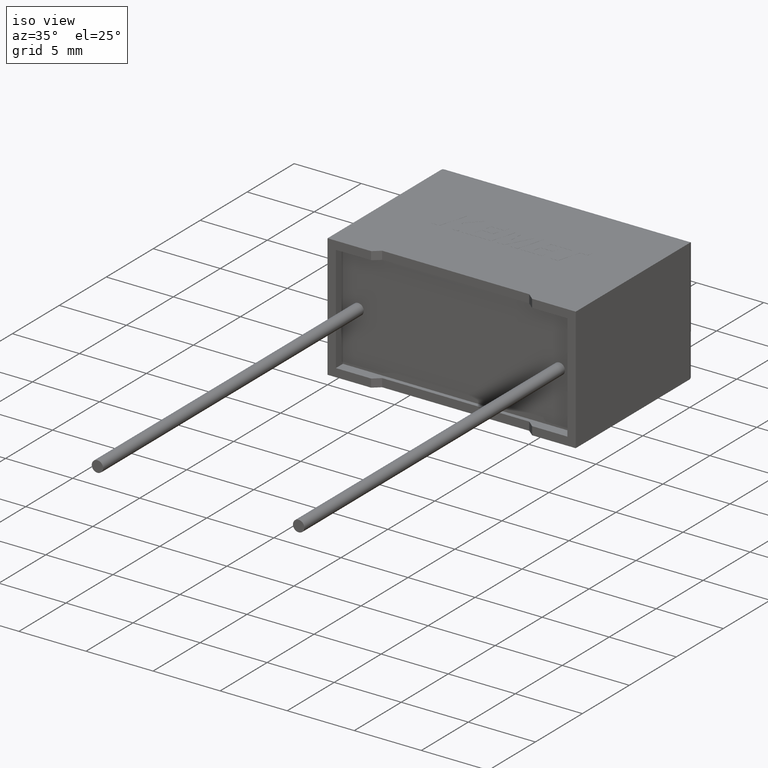
[diagram: clean part render]
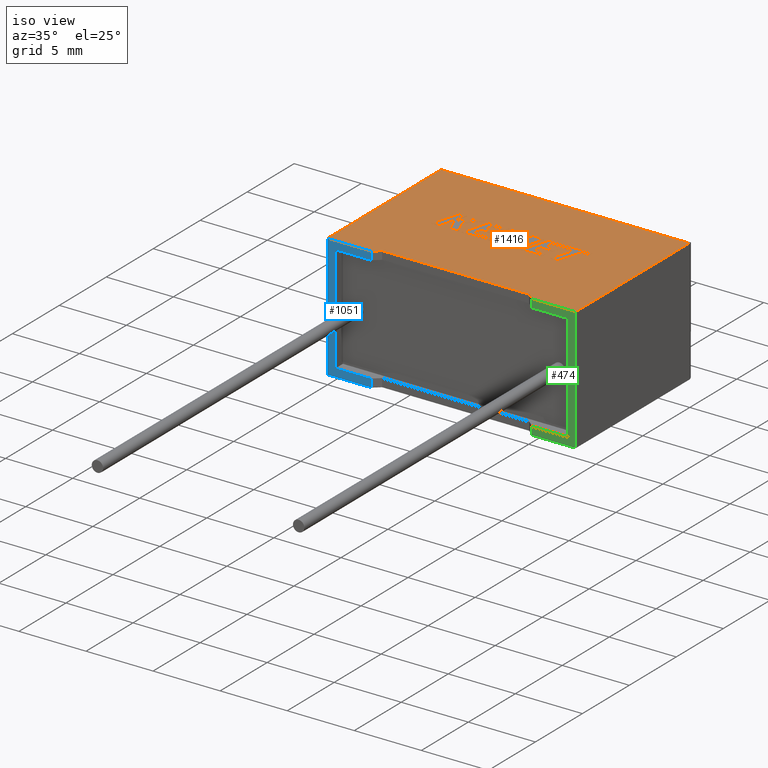
[diagram: same view with three faces highlighted in distinct colors, each labeled with its STEP entity id]
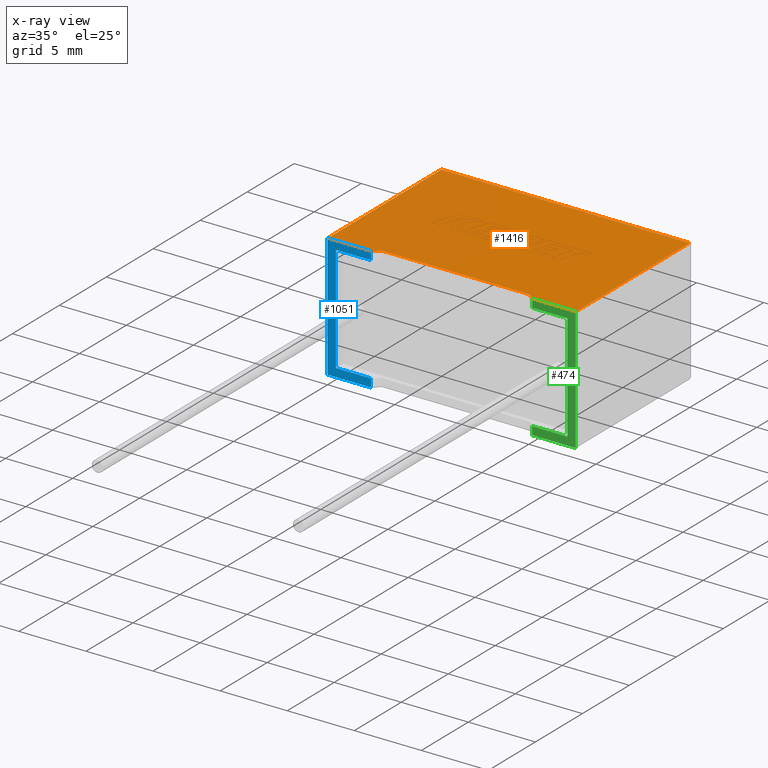
[diagram: x-ray of the same camera — body ghosted, the three highlighted faces saturated]
A machine part, iso view with three faces highlighted in distinct colors.
The next image is the same camera in x-ray (body ghosted, the three faces saturated) — at least one of them is partly hidden behind the body in this view.
Their STEP definitions:

[orange] entity #1416 — the highlighted planar face has unit normal (0, 0, -1).
#66 = ORIENTED_EDGE ( 'NONE', *, *, #1108, .F. ) ;
#142 = CARTESIAN_POINT ( 'NONE',  ( 9.250000000000000000, 0.4344480000000005000, 9.199999999999999300 ) ) ;
#148 = EDGE_CURVE ( 'NONE', #2150, #2474, #2390, .T. ) ;
#168 = CARTESIAN_POINT ( 'NONE',  ( 3.763745000000000100, 0.4344479999999998300, 9.199999999999999300 ) ) ;
#246 = VERTEX_POINT ( 'NONE', #1642 ) ;
#261 = VECTOR ( 'NONE', #2047, 1000.000000000000000 ) ;
#308 = VERTEX_POINT ( 'NONE', #1473 ) ;
#354 = CARTESIAN_POINT ( 'NONE',  ( 18.50000000000000000, 0.0000000000000000000, 9.199999999999999300 ) ) ;
#394 = VECTOR ( 'NONE', #2989, 1000.000000000000000 ) ;
#479 = VERTEX_POINT ( 'NONE', #354 ) ;
#484 = ORIENTED_EDGE ( 'NONE', *, *, #849, .T. ) ;
#501 = DIRECTION ( 'NONE',  ( -1.000000000000000000, 0.0000000000000000000, -0.0000000000000000000 ) ) ;
#557 = ORIENTED_EDGE ( 'NONE', *, *, #148, .T. ) ;
#595 = LINE ( 'NONE', #2581, #1975 ) ;
#610 = EDGE_CURVE ( 'NONE', #2150, #1459, #634, .T. ) ;
#630 = LINE ( 'NONE', #1663, #1761 ) ;
#631 = DIRECTION ( 'NONE',  ( -1.000000000000000000, 0.0000000000000000000, 0.0000000000000000000 ) ) ;
#634 = LINE ( 'NONE', #142, #261 ) ;
#658 = CARTESIAN_POINT ( 'NONE',  ( 15.25000000000000000, 1.990051048614449400E-016, 9.199999999999999300 ) ) ;
#728 = VERTEX_POINT ( 'NONE', #1651 ) ;
#849 = EDGE_CURVE ( 'NONE', #2554, #728, #630, .T. ) ;
#860 = CARTESIAN_POINT ( 'NONE',  ( 14.73625499999999800, 0.4344479999999998300, 9.199999999999999300 ) ) ;
#940 = CARTESIAN_POINT ( 'NONE',  ( 18.50000000000000000, 0.0000000000000000000, 9.199999999999999300 ) ) ;
#1027 = DIRECTION ( 'NONE',  ( 1.000000000000000000, 0.0000000000000000000, 0.0000000000000000000 ) ) ;
#1062 = ORIENTED_EDGE ( 'NONE', *, *, #2013, .T. ) ;
#1108 = EDGE_CURVE ( 'NONE', #1459, #728, #595, .T. ) ;
#1263 = ORIENTED_EDGE ( 'NONE', *, *, #610, .F. ) ;
#1307 = CARTESIAN_POINT ( 'NONE',  ( 0.0000000000000000000, 0.0000000000000000000, 9.199999999999999300 ) ) ;
#1326 = CARTESIAN_POINT ( 'NONE',  ( 0.0000000000000000000, 0.0000000000000000000, 9.199999999999999300 ) ) ;
#1415 = CARTESIAN_POINT ( 'NONE',  ( 0.0000000000000000000, 12.10000000000000000, 9.199999999999999300 ) ) ;
#1416 = ADVANCED_FACE ( 'NONE', ( #2072 ), #3049, .F. ) ;
#1420 = DIRECTION ( 'NONE',  ( -0.7635762981264977400, -0.6457176139299856100, -0.0000000000000000000 ) ) ;
#1442 = LINE ( 'NONE', #1415, #1813 ) ;
#1459 = VERTEX_POINT ( 'NONE', #168 ) ;
#1473 = CARTESIAN_POINT ( 'NONE',  ( 0.0000000000000000000, 12.10000000000000000, 9.199999999999999300 ) ) ;
#1534 = LINE ( 'NONE', #940, #2631 ) ;
#1597 = LINE ( 'NONE', #1326, #394 ) ;
#1634 = EDGE_CURVE ( 'NONE', #479, #246, #1534, .T. ) ;
#1642 = CARTESIAN_POINT ( 'NONE',  ( 18.50000000000000000, 12.10000000000000000, 9.199999999999999300 ) ) ;
#1651 = CARTESIAN_POINT ( 'NONE',  ( 3.250000000000000400, 1.990051048614449400E-016, 9.199999999999999300 ) ) ;
#1663 = CARTESIAN_POINT ( 'NONE',  ( 0.0000000000000000000, 0.0000000000000000000, 9.199999999999999300 ) ) ;
#1671 = LINE ( 'NONE', #1957, #2846 ) ;
#1678 = DIRECTION ( 'NONE',  ( 0.7635762981264977400, -0.6457176139299856100, -0.0000000000000000000 ) ) ;
#1761 = VECTOR ( 'NONE', #2141, 1000.000000000000000 ) ;
#1813 = VECTOR ( 'NONE', #631, 1000.000000000000000 ) ;
#1900 = DIRECTION ( 'NONE',  ( 0.0000000000000000000, 1.000000000000000000, 0.0000000000000000000 ) ) ;
#1957 = CARTESIAN_POINT ( 'NONE',  ( 0.0000000000000000000, 0.0000000000000000000, 9.199999999999999300 ) ) ;
#1970 = EDGE_CURVE ( 'NONE', #308, #2554, #1597, .T. ) ;
#1975 = VECTOR ( 'NONE', #1420, 1000.000000000000100 ) ;
#2013 = EDGE_CURVE ( 'NONE', #2474, #479, #1671, .T. ) ;
#2014 = VECTOR ( 'NONE', #1678, 1000.000000000000100 ) ;
#2047 = DIRECTION ( 'NONE',  ( -1.000000000000000000, -1.185729251540992600E-016, 0.0000000000000000000 ) ) ;
#2072 = FACE_OUTER_BOUND ( 'NONE', #2090, .T. ) ;
#2090 = EDGE_LOOP ( 'NONE', ( #3046, #2412, #2654, #484, #66, #1263, #557, #1062 ) ) ;
#2107 = CARTESIAN_POINT ( 'NONE',  ( 15.25000000000000000, 1.990051048614449400E-016, 9.199999999999999300 ) ) ;
#2141 = DIRECTION ( 'NONE',  ( 1.000000000000000000, 0.0000000000000000000, 0.0000000000000000000 ) ) ;
#2150 = VERTEX_POINT ( 'NONE', #860 ) ;
#2194 = DIRECTION ( 'NONE',  ( 0.0000000000000000000, 0.0000000000000000000, -1.000000000000000000 ) ) ;
#2257 = AXIS2_PLACEMENT_3D ( 'NONE', #2830, #2194, #501 ) ;
#2390 = LINE ( 'NONE', #658, #2014 ) ;
#2412 = ORIENTED_EDGE ( 'NONE', *, *, #2819, .T. ) ;
#2474 = VERTEX_POINT ( 'NONE', #2107 ) ;
#2554 = VERTEX_POINT ( 'NONE', #1307 ) ;
#2581 = CARTESIAN_POINT ( 'NONE',  ( 3.250000000000000400, 1.990051048614449400E-016, 9.199999999999999300 ) ) ;
#2631 = VECTOR ( 'NONE', #1900, 1000.000000000000000 ) ;
#2654 = ORIENTED_EDGE ( 'NONE', *, *, #1970, .T. ) ;
#2819 = EDGE_CURVE ( 'NONE', #246, #308, #1442, .T. ) ;
#2830 = CARTESIAN_POINT ( 'NONE',  ( 0.0000000000000000000, 0.0000000000000000000, 9.199999999999999300 ) ) ;
#2846 = VECTOR ( 'NONE', #1027, 1000.000000000000000 ) ;
#2989 = DIRECTION ( 'NONE',  ( -0.0000000000000000000, -1.000000000000000000, -0.0000000000000000000 ) ) ;
#3046 = ORIENTED_EDGE ( 'NONE', *, *, #1634, .T. ) ;
#3049 = PLANE ( 'NONE',  #2257 ) ;

[blue] entity #1051 — the highlighted planar face has unit normal (0, 1, 0).
#63 = EDGE_CURVE ( 'NONE', #1707, #2708, #598, .T. ) ;
#121 = VECTOR ( 'NONE', #1183, 1000.000000000000000 ) ;
#185 = VERTEX_POINT ( 'NONE', #2444 ) ;
#302 = VERTEX_POINT ( 'NONE', #1243 ) ;
#319 = EDGE_CURVE ( 'NONE', #2554, #1871, #2308, .T. ) ;
#450 = CARTESIAN_POINT ( 'NONE',  ( 0.0000000000000000000, 0.0000000000000000000, 0.0000000000000000000 ) ) ;
#519 = EDGE_LOOP ( 'NONE', ( #1787, #2302, #2935, #1991, #3050, #2510, #1876, #695 ) ) ;
#546 = EDGE_CURVE ( 'NONE', #185, #1707, #1585, .T. ) ;
#577 = LINE ( 'NONE', #705, #1556 ) ;
#598 = LINE ( 'NONE', #2438, #1199 ) ;
#630 = LINE ( 'NONE', #1663, #1761 ) ;
#632 = VECTOR ( 'NONE', #1492, 1000.000000000000000 ) ;
#665 = CARTESIAN_POINT ( 'NONE',  ( 3.250000000000000400, 1.990051048614449400E-016, 0.0000000000000000000 ) ) ;
#675 = DIRECTION ( 'NONE',  ( 0.0000000000000000000, -0.0000000000000000000, 1.000000000000000000 ) ) ;
#695 = ORIENTED_EDGE ( 'NONE', *, *, #319, .T. ) ;
#705 = CARTESIAN_POINT ( 'NONE',  ( 3.250000000000000400, 1.990051048614449400E-016, 0.0000000000000000000 ) ) ;
#728 = VERTEX_POINT ( 'NONE', #1651 ) ;
#846 = FACE_OUTER_BOUND ( 'NONE', #519, .T. ) ;
#849 = EDGE_CURVE ( 'NONE', #2554, #728, #630, .T. ) ;
#875 = VECTOR ( 'NONE', #2515, 1000.000000000000000 ) ;
#900 = VECTOR ( 'NONE', #920, 1000.000000000000000 ) ;
#920 = DIRECTION ( 'NONE',  ( 1.000000000000000000, 0.0000000000000000000, -1.255832623252359000E-017 ) ) ;
#1010 = CARTESIAN_POINT ( 'NONE',  ( 0.0000000000000000000, 0.0000000000000000000, 9.199999999999999300 ) ) ;
#1017 = EDGE_CURVE ( 'NONE', #302, #1618, #1464, .T. ) ;
#1051 = ADVANCED_FACE ( 'NONE', ( #846 ), #1635, .F. ) ;
#1183 = DIRECTION ( 'NONE',  ( 1.000000000000000000, 0.0000000000000000000, 0.0000000000000000000 ) ) ;
#1199 = VECTOR ( 'NONE', #2622, 1000.000000000000000 ) ;
#1240 = CARTESIAN_POINT ( 'NONE',  ( 0.6166666050000000300, 0.0000000000000000000, 0.6166666049999998100 ) ) ;
#1243 = CARTESIAN_POINT ( 'NONE',  ( 3.250000000000000400, 1.990051048614449400E-016, 0.0000000000000000000 ) ) ;
#1307 = CARTESIAN_POINT ( 'NONE',  ( 0.0000000000000000000, 0.0000000000000000000, 9.199999999999999300 ) ) ;
#1378 = CARTESIAN_POINT ( 'NONE',  ( 3.250000000000000400, 1.990051048614449400E-016, 0.6166666049999998100 ) ) ;
#1464 = LINE ( 'NONE', #665, #1863 ) ;
#1492 = DIRECTION ( 'NONE',  ( -0.0000000000000000000, -0.0000000000000000000, -1.000000000000000000 ) ) ;
#1520 = LINE ( 'NONE', #1623, #121 ) ;
#1556 = VECTOR ( 'NONE', #1594, 1000.000000000000000 ) ;
#1585 = LINE ( 'NONE', #2031, #875 ) ;
#1594 = DIRECTION ( 'NONE',  ( -0.0000000000000000000, -0.0000000000000000000, 1.000000000000000000 ) ) ;
#1618 = VERTEX_POINT ( 'NONE', #1378 ) ;
#1623 = CARTESIAN_POINT ( 'NONE',  ( 0.0000000000000000000, 0.0000000000000000000, 0.0000000000000000000 ) ) ;
#1635 = PLANE ( 'NONE',  #2220 ) ;
#1651 = CARTESIAN_POINT ( 'NONE',  ( 3.250000000000000400, 1.990051048614449400E-016, 9.199999999999999300 ) ) ;
#1663 = CARTESIAN_POINT ( 'NONE',  ( 0.0000000000000000000, 0.0000000000000000000, 9.199999999999999300 ) ) ;
#1707 = VERTEX_POINT ( 'NONE', #2609 ) ;
#1761 = VECTOR ( 'NONE', #2141, 1000.000000000000000 ) ;
#1787 = ORIENTED_EDGE ( 'NONE', *, *, #2768, .T. ) ;
#1863 = VECTOR ( 'NONE', #2334, 1000.000000000000000 ) ;
#1871 = VERTEX_POINT ( 'NONE', #450 ) ;
#1876 = ORIENTED_EDGE ( 'NONE', *, *, #849, .F. ) ;
#1991 = ORIENTED_EDGE ( 'NONE', *, *, #63, .F. ) ;
#2031 = CARTESIAN_POINT ( 'NONE',  ( 17.88333339499999800, 0.0000000000000000000, 8.583333395000000400 ) ) ;
#2141 = DIRECTION ( 'NONE',  ( 1.000000000000000000, 0.0000000000000000000, 0.0000000000000000000 ) ) ;
#2220 = AXIS2_PLACEMENT_3D ( 'NONE', #2363, #2349, #675 ) ;
#2302 = ORIENTED_EDGE ( 'NONE', *, *, #1017, .T. ) ;
#2308 = LINE ( 'NONE', #1010, #632 ) ;
#2334 = DIRECTION ( 'NONE',  ( -0.0000000000000000000, -0.0000000000000000000, 1.000000000000000000 ) ) ;
#2349 = DIRECTION ( 'NONE',  ( 0.0000000000000000000, 1.000000000000000000, 0.0000000000000000000 ) ) ;
#2363 = CARTESIAN_POINT ( 'NONE',  ( 0.0000000000000000000, 0.0000000000000000000, 9.199999999999999300 ) ) ;
#2438 = CARTESIAN_POINT ( 'NONE',  ( 0.6166666050000000300, 0.0000000000000000000, 8.583333394999998600 ) ) ;
#2444 = CARTESIAN_POINT ( 'NONE',  ( 3.250000000000000400, 1.990051048614449400E-016, 8.583333395000000400 ) ) ;
#2510 = ORIENTED_EDGE ( 'NONE', *, *, #2517, .T. ) ;
#2515 = DIRECTION ( 'NONE',  ( -1.000000000000000000, 0.0000000000000000000, -1.004666098601887200E-016 ) ) ;
#2517 = EDGE_CURVE ( 'NONE', #185, #728, #577, .T. ) ;
#2554 = VERTEX_POINT ( 'NONE', #1307 ) ;
#2561 = EDGE_CURVE ( 'NONE', #2708, #1618, #2655, .T. ) ;
#2609 = CARTESIAN_POINT ( 'NONE',  ( 0.6166666050000000300, 0.0000000000000000000, 8.583333394999998600 ) ) ;
#2622 = DIRECTION ( 'NONE',  ( 0.0000000000000000000, 0.0000000000000000000, -1.000000000000000000 ) ) ;
#2655 = LINE ( 'NONE', #2777, #900 ) ;
#2708 = VERTEX_POINT ( 'NONE', #1240 ) ;
#2768 = EDGE_CURVE ( 'NONE', #1871, #302, #1520, .T. ) ;
#2777 = CARTESIAN_POINT ( 'NONE',  ( 0.6166666050000000300, 0.0000000000000000000, 0.6166666049999998100 ) ) ;
#2935 = ORIENTED_EDGE ( 'NONE', *, *, #2561, .F. ) ;
#3050 = ORIENTED_EDGE ( 'NONE', *, *, #546, .F. ) ;

[green] entity #474 — the highlighted planar face has unit normal (0, 1, 0).
#1 = ORIENTED_EDGE ( 'NONE', *, *, #973, .F. ) ;
#94 = ORIENTED_EDGE ( 'NONE', *, *, #2246, .F. ) ;
#141 = LINE ( 'NONE', #441, #2710 ) ;
#162 = CARTESIAN_POINT ( 'NONE',  ( 17.88333339499999800, 0.0000000000000000000, 8.583333395000000400 ) ) ;
#197 = CARTESIAN_POINT ( 'NONE',  ( 17.88333339499999800, 0.0000000000000000000, 0.6166666049999995900 ) ) ;
#259 = VECTOR ( 'NONE', #772, 1000.000000000000000 ) ;
#330 = DIRECTION ( 'NONE',  ( 0.0000000000000000000, -0.0000000000000000000, 1.000000000000000000 ) ) ;
#354 = CARTESIAN_POINT ( 'NONE',  ( 18.50000000000000000, 0.0000000000000000000, 9.199999999999999300 ) ) ;
#390 = DIRECTION ( 'NONE',  ( -1.000000000000000000, 0.0000000000000000000, -1.004666098601887200E-016 ) ) ;
#416 = EDGE_CURVE ( 'NONE', #479, #1655, #1198, .T. ) ;
#441 = CARTESIAN_POINT ( 'NONE',  ( 15.25000000000000000, 1.990051048614449400E-016, 0.0000000000000000000 ) ) ;
#474 = ADVANCED_FACE ( 'NONE', ( #1869 ), #2479, .F. ) ;
#479 = VERTEX_POINT ( 'NONE', #354 ) ;
#525 = VECTOR ( 'NONE', #390, 1000.000000000000000 ) ;
#629 = EDGE_CURVE ( 'NONE', #1666, #1655, #2641, .T. ) ;
#698 = CARTESIAN_POINT ( 'NONE',  ( 18.50000000000000000, 0.0000000000000000000, 0.0000000000000000000 ) ) ;
#767 = LINE ( 'NONE', #1260, #956 ) ;
#772 = DIRECTION ( 'NONE',  ( -0.0000000000000000000, -0.0000000000000000000, -1.000000000000000000 ) ) ;
#787 = ORIENTED_EDGE ( 'NONE', *, *, #1562, .F. ) ;
#808 = VECTOR ( 'NONE', #1803, 1000.000000000000000 ) ;
#817 = ORIENTED_EDGE ( 'NONE', *, *, #416, .F. ) ;
#956 = VECTOR ( 'NONE', #1977, 1000.000000000000000 ) ;
#969 = CARTESIAN_POINT ( 'NONE',  ( 17.88333339499999800, 0.0000000000000000000, 8.583333395000000400 ) ) ;
#973 = EDGE_CURVE ( 'NONE', #1988, #2973, #1154, .T. ) ;
#980 = VECTOR ( 'NONE', #2695, 1000.000000000000000 ) ;
#1013 = CARTESIAN_POINT ( 'NONE',  ( 15.25000000000000000, 1.990051048614449400E-016, 0.6166666049999995900 ) ) ;
#1021 = ORIENTED_EDGE ( 'NONE', *, *, #2610, .F. ) ;
#1025 = DIRECTION ( 'NONE',  ( 1.000000000000000000, 0.0000000000000000000, -1.255832623252359000E-017 ) ) ;
#1027 = DIRECTION ( 'NONE',  ( 1.000000000000000000, 0.0000000000000000000, 0.0000000000000000000 ) ) ;
#1154 = LINE ( 'NONE', #162, #525 ) ;
#1175 = VERTEX_POINT ( 'NONE', #1013 ) ;
#1178 = EDGE_CURVE ( 'NONE', #1666, #1175, #141, .T. ) ;
#1198 = LINE ( 'NONE', #2181, #259 ) ;
#1260 = CARTESIAN_POINT ( 'NONE',  ( 15.25000000000000000, 1.990051048614449400E-016, 0.0000000000000000000 ) ) ;
#1448 = ORIENTED_EDGE ( 'NONE', *, *, #1178, .F. ) ;
#1476 = CARTESIAN_POINT ( 'NONE',  ( 0.6166666050000000300, 0.0000000000000000000, 0.6166666049999998100 ) ) ;
#1518 = CARTESIAN_POINT ( 'NONE',  ( 15.25000000000000000, 1.990051048614449400E-016, 8.583333395000000400 ) ) ;
#1557 = CARTESIAN_POINT ( 'NONE',  ( 0.0000000000000000000, 0.0000000000000000000, 9.199999999999999300 ) ) ;
#1562 = EDGE_CURVE ( 'NONE', #2973, #2474, #767, .T. ) ;
#1655 = VERTEX_POINT ( 'NONE', #698 ) ;
#1666 = VERTEX_POINT ( 'NONE', #2079 ) ;
#1671 = LINE ( 'NONE', #1957, #2846 ) ;
#1768 = LINE ( 'NONE', #1476, #2784 ) ;
#1803 = DIRECTION ( 'NONE',  ( 1.000000000000000000, 0.0000000000000000000, 0.0000000000000000000 ) ) ;
#1859 = AXIS2_PLACEMENT_3D ( 'NONE', #1557, #1983, #330 ) ;
#1869 = FACE_OUTER_BOUND ( 'NONE', #2241, .T. ) ;
#1957 = CARTESIAN_POINT ( 'NONE',  ( 0.0000000000000000000, 0.0000000000000000000, 9.199999999999999300 ) ) ;
#1977 = DIRECTION ( 'NONE',  ( -0.0000000000000000000, -0.0000000000000000000, 1.000000000000000000 ) ) ;
#1983 = DIRECTION ( 'NONE',  ( 0.0000000000000000000, 1.000000000000000000, 0.0000000000000000000 ) ) ;
#1988 = VERTEX_POINT ( 'NONE', #969 ) ;
#2013 = EDGE_CURVE ( 'NONE', #2474, #479, #1671, .T. ) ;
#2079 = CARTESIAN_POINT ( 'NONE',  ( 15.25000000000000000, 1.990051048614449400E-016, 0.0000000000000000000 ) ) ;
#2099 = DIRECTION ( 'NONE',  ( -0.0000000000000000000, -0.0000000000000000000, 1.000000000000000000 ) ) ;
#2107 = CARTESIAN_POINT ( 'NONE',  ( 15.25000000000000000, 1.990051048614449400E-016, 9.199999999999999300 ) ) ;
#2181 = CARTESIAN_POINT ( 'NONE',  ( 18.50000000000000000, 0.0000000000000000000, 9.199999999999999300 ) ) ;
#2221 = CARTESIAN_POINT ( 'NONE',  ( 17.88333339499999800, 0.0000000000000000000, 0.6166666049999995900 ) ) ;
#2241 = EDGE_LOOP ( 'NONE', ( #1448, #2490, #817, #3026, #787, #1, #1021, #94 ) ) ;
#2246 = EDGE_CURVE ( 'NONE', #1175, #2285, #1768, .T. ) ;
#2285 = VERTEX_POINT ( 'NONE', #2221 ) ;
#2299 = CARTESIAN_POINT ( 'NONE',  ( 0.0000000000000000000, 0.0000000000000000000, 0.0000000000000000000 ) ) ;
#2474 = VERTEX_POINT ( 'NONE', #2107 ) ;
#2479 = PLANE ( 'NONE',  #1859 ) ;
#2490 = ORIENTED_EDGE ( 'NONE', *, *, #629, .T. ) ;
#2610 = EDGE_CURVE ( 'NONE', #2285, #1988, #2939, .T. ) ;
#2641 = LINE ( 'NONE', #2299, #808 ) ;
#2695 = DIRECTION ( 'NONE',  ( 0.0000000000000000000, 0.0000000000000000000, 1.000000000000000000 ) ) ;
#2710 = VECTOR ( 'NONE', #2099, 1000.000000000000000 ) ;
#2784 = VECTOR ( 'NONE', #1025, 1000.000000000000000 ) ;
#2846 = VECTOR ( 'NONE', #1027, 1000.000000000000000 ) ;
#2939 = LINE ( 'NONE', #197, #980 ) ;
#2973 = VERTEX_POINT ( 'NONE', #1518 ) ;
#3026 = ORIENTED_EDGE ( 'NONE', *, *, #2013, .F. ) ;